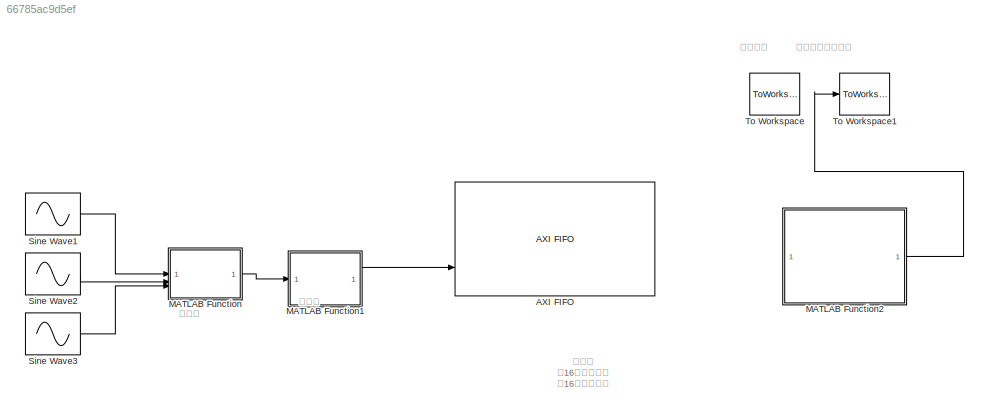
MODEL slx_66785ac9d5ef
KIND model
CONFIG AbsTol = auto
CONFIG EnableMultiTasking = off
CONFIG FixedStep = auto
CONFIG MaxStep = auto
CONFIG MinStep = auto
CONFIG RelTol = 1e-3
CONFIG SampleTimeConstraint = Unconstrained
CONFIG SolverName = VariableStepAuto
CONFIG StartTime = 0.0
CONFIG StopTime = 2
BLOCK [Reference] AXI FIFO  REF=xbsIndex_r4/AXI FIFO
  SourceBlock = xbsIndex_r4/AXI FIFO
  SourceType = Xilinx AXI FIFO Block Block
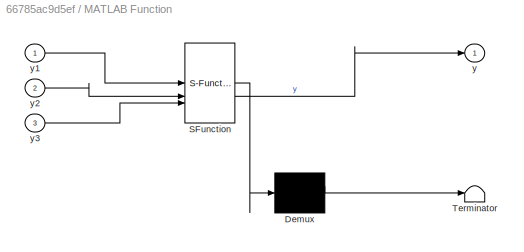
BLOCK [SubSystem] MATLAB Function
  ErrorFcn = Stateflow.Translate.translate
  LibrarySourceBlock = simulink/User-Defined\nFunctions/MATLAB Function
  PermitHierarchicalResolution = ExplicitOnly
  SFBlockType = MATLAB Function
  TreatAsAtomicUnit = on
BLOCK [Demux] MATLAB Function/ Demux 
  Outputs = 1
BLOCK [S-Function] MATLAB Function/ SFunction 
  EnableBusSupport = on
  FunctionName = sf_sfun
  PortCounts = [3 2]
  SFcnIsStateOwnerBlock = off
  SFunctionDeploymentMode = off
  Tag = Stateflow S-Function 2
BLOCK [Terminator] MATLAB Function/ Terminator 
BLOCK [Outport] MATLAB Function/y
BLOCK [Inport] MATLAB Function/y1
BLOCK [Inport] MATLAB Function/y2
  Port = 2
BLOCK [Inport] MATLAB Function/y3
  Port = 3
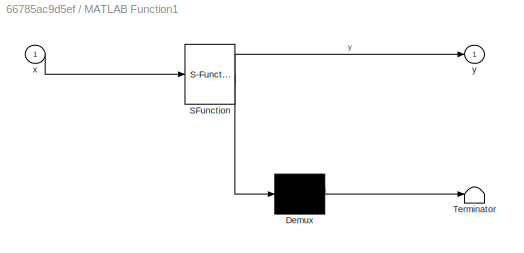
BLOCK [SubSystem] MATLAB Function1
  ErrorFcn = Stateflow.Translate.translate
  LibrarySourceBlock = simulink/User-Defined\nFunctions/MATLAB Function
  PermitHierarchicalResolution = ExplicitOnly
  SFBlockType = MATLAB Function
  TreatAsAtomicUnit = on
BLOCK [Demux] MATLAB Function1/ Demux 
  Outputs = 1
BLOCK [S-Function] MATLAB Function1/ SFunction 
  EnableBusSupport = on
  FunctionName = sf_sfun
  PortCounts = [1 2]
  SFcnIsStateOwnerBlock = off
  SFunctionDeploymentMode = off
  Tag = Stateflow S-Function 1
BLOCK [Terminator] MATLAB Function1/ Terminator 
BLOCK [Inport] MATLAB Function1/x
BLOCK [Outport] MATLAB Function1/y
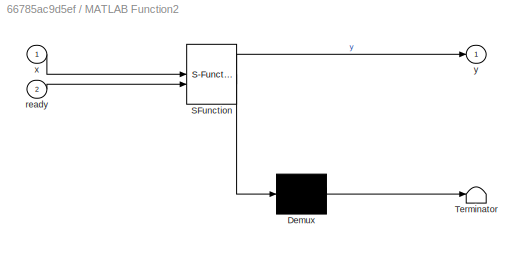
BLOCK [SubSystem] MATLAB Function2
  ErrorFcn = Stateflow.Translate.translate
  LibrarySourceBlock = simulink/User-Defined\nFunctions/MATLAB Function
  PermitHierarchicalResolution = ExplicitOnly
  SFBlockType = MATLAB Function
  TreatAsAtomicUnit = on
BLOCK [Demux] MATLAB Function2/ Demux 
  Outputs = 1
BLOCK [S-Function] MATLAB Function2/ SFunction 
  EnableBusSupport = on
  FunctionName = sf_sfun
  PortCounts = [2 2]
  SFcnIsStateOwnerBlock = off
  SFunctionDeploymentMode = off
  Tag = Stateflow S-Function 3
BLOCK [Terminator] MATLAB Function2/ Terminator 
BLOCK [Inport] MATLAB Function2/ready
  Port = 2
BLOCK [Inport] MATLAB Function2/x
BLOCK [Outport] MATLAB Function2/y
BLOCK [Sin] Sine Wave1
  Amplitude = 10
  Frequency = 628
  SampleTime = 0.001
BLOCK [Sin] Sine Wave2
  Amplitude = 10
  Frequency = 1257
  SampleTime = 0.001
BLOCK [Sin] Sine Wave3
  Amplitude = 10
  Frequency = 1885
  SampleTime = 0.001
BLOCK [ToWorkspace] To Workspace
  MaxDataPoints = inf
  SampleTime = -1
  Save2DSignal = 2-D array (concatenate along first dimension)
  VariableName = signal
BLOCK [ToWorkspace] To Workspace1
  MaxDataPoints = inf
  SampleTime = -1
  Save2DSignal = 2-D array (concatenate along first dimension)
  VariableName = in_fft_ip_data
ANNOTATION (root): 加噪声
ANNOTATION (root): 处理： 高16位为虚部； 低16位为实部。
ANNOTATION (root): 查看信号
ANNOTATION (root): 查看处理后的数据
ANNOTATION (root): 原信号
LINE MATLAB Function1:1 -> AXI FIFO:3
LINE MATLAB Function2:1 -> To Workspace1:1
LINE MATLAB Function:1 -> MATLAB Function1:1
LINE Sine Wave1:1 -> MATLAB Function:1
LINE Sine Wave2:1 -> MATLAB Function:2
LINE Sine Wave3:1 -> MATLAB Function:3
CHART MATLAB Function1 states=1 transitions=1
  STATE_LABEL 'eML_blk_kernel()'
  STATE_LABEL "SCRIPT:\nfunction y = awgn(x)\n\nx_add_noise = awgn(x, 10, 'measured');\n\nreal_x = int32(real(x_add_noise));\nimag_x = int32(imag(x_add_noise));\n\ny = int32(bitshift(imag_x, 16) + real_x);\n"
CHART MATLAB Function states=1 transitions=1
  STATE_LABEL 'eML_blk_kernel()'
  STATE_LABEL 'SCRIPT:\nfunction y = signal(y1, y2, y3)\n\ny = y1 +  y2 + y3;\n\n'
CHART MATLAB Function2 states=1 transitions=1
  STATE_LABEL 'eML_blk_kernel()'
  STATE_LABEL 'SCRIPT:\nfunction y = dv_fft_ip(x, ready)\n\nreal_x = int32(real(x));\nimag_x = int32(imag(x));\n\ny = int32(bitshift(imag_x, 16) + real_x);\n'
CHART  states=0 transitions=0
CHART  states=0 transitions=0
CHART  states=0 transitions=0
